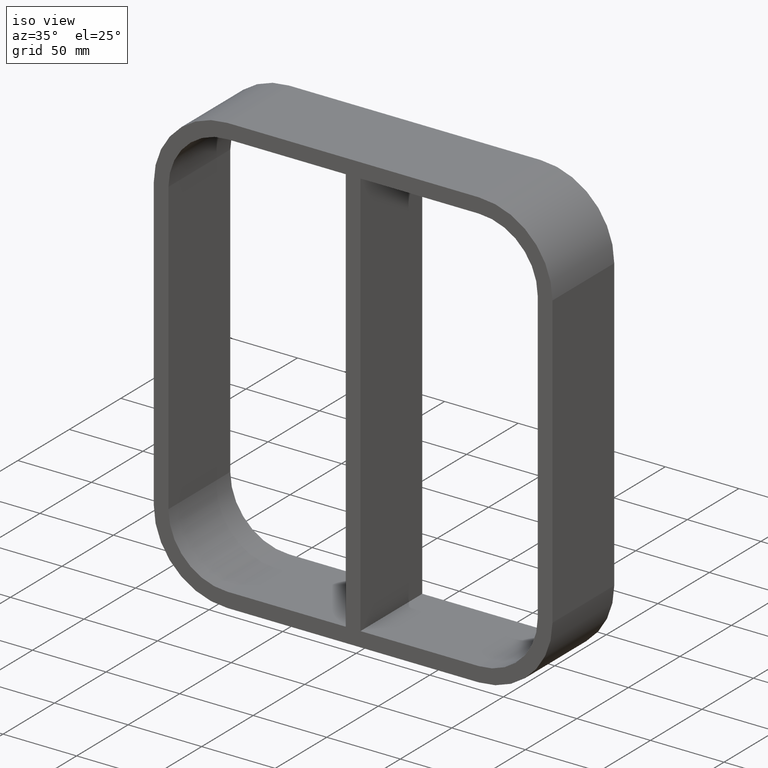
[diagram: clean part render]
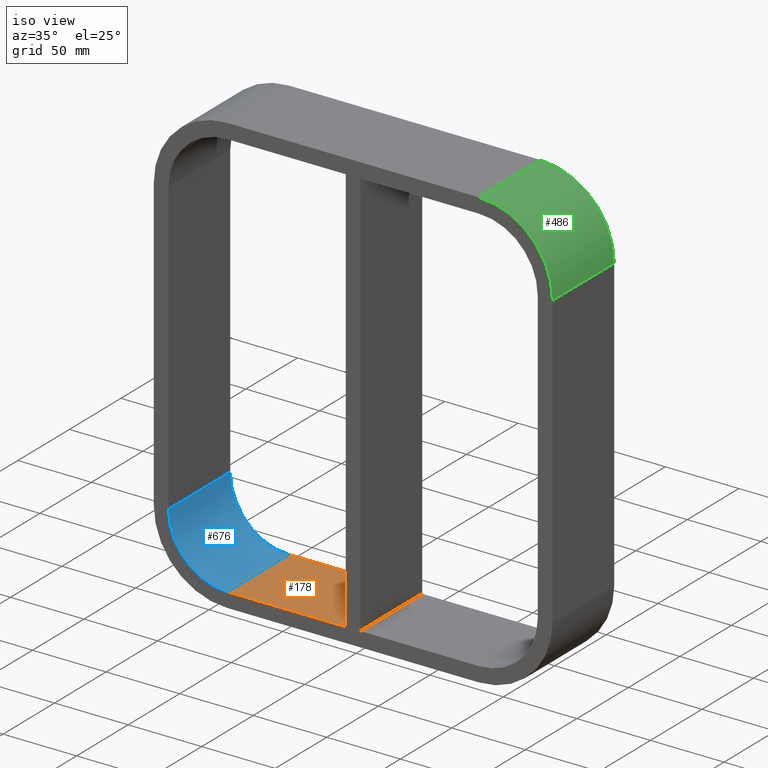
[diagram: same view with three faces highlighted in distinct colors, each labeled with its STEP entity id]
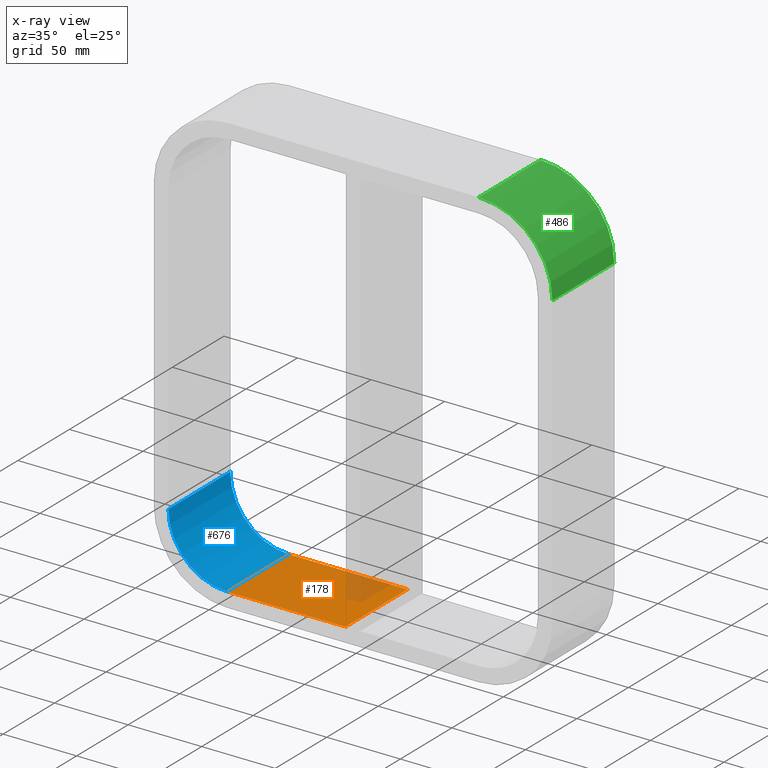
[diagram: x-ray of the same camera — body ghosted, the three highlighted faces saturated]
A machine part, iso view with three faces highlighted in distinct colors.
The next image is the same camera in x-ray (body ghosted, the three faces saturated) — at least one of them is partly hidden behind the body in this view.
Their STEP definitions:

[orange] entity #178 — the highlighted planar face has unit normal (0, 0, -1).
#73=CARTESIAN_POINT('',(-5.000000000001439,-3.0,-139.0));
#74=VERTEX_POINT('',#73);
#91=CARTESIAN_POINT('',(-5.000000000001439,57.0,-139.0));
#92=VERTEX_POINT('',#91);
#99=CARTESIAN_POINT('',(-5.000000000001439,-3.0,-139.0));
#100=DIRECTION('',(0.0,1.0,0.0));
#101=VECTOR('',#100,60.000000000000007);
#102=LINE('',#99,#101);
#103=EDGE_CURVE('',#74,#92,#102,.T.);
#148=CARTESIAN_POINT('',(125.49999999999997,0.0,-139.0));
#149=DIRECTION('',(0.0,0.0,-1.0));
#150=DIRECTION('',(-1.0,0.0,0.0));
#151=AXIS2_PLACEMENT_3D('',#148,#149,#150);
#152=PLANE('',#151);
#153=ORIENTED_EDGE('',*,*,#103,.T.);
#154=CARTESIAN_POINT('',(-85.499999999999972,57.0,-139.0));
#155=VERTEX_POINT('',#154);
#156=CARTESIAN_POINT('',(-85.499999999999943,57.0,-139.0));
#157=DIRECTION('',(1.0,0.0,0.0));
#158=VECTOR('',#157,80.499999999998494);
#159=LINE('',#156,#158);
#160=EDGE_CURVE('',#155,#92,#159,.T.);
#161=ORIENTED_EDGE('',*,*,#160,.F.);
#162=CARTESIAN_POINT('',(-85.499999999999972,-3.0,-139.0));
#163=VERTEX_POINT('',#162);
#164=CARTESIAN_POINT('',(-85.499999999999972,-3.0,-139.0));
#165=DIRECTION('',(0.0,1.0,0.0));
#166=VECTOR('',#165,60.0);
#167=LINE('',#164,#166);
#168=EDGE_CURVE('',#163,#155,#167,.T.);
#169=ORIENTED_EDGE('',*,*,#168,.F.);
#170=CARTESIAN_POINT('',(-5.000000000001442,-3.0,-139.0));
#171=DIRECTION('',(-1.0,0.0,0.0));
#172=VECTOR('',#171,80.499999999998494);
#173=LINE('',#170,#172);
#174=EDGE_CURVE('',#74,#163,#173,.T.);
#175=ORIENTED_EDGE('',*,*,#174,.F.);
#176=EDGE_LOOP('',(#153,#161,#169,#175));
#177=FACE_OUTER_BOUND('',#176,.T.);
#178=ADVANCED_FACE('',(#177),#152,.F.);

[blue] entity #676 — the highlighted cylindrical surface (partial cylindrical patch) has radius 40 mm, axis along (0, 1, 0).
#154=CARTESIAN_POINT('',(-85.499999999999972,57.0,-139.0));
#155=VERTEX_POINT('',#154);
#162=CARTESIAN_POINT('',(-85.499999999999972,-3.0,-139.0));
#163=VERTEX_POINT('',#162);
#164=CARTESIAN_POINT('',(-85.499999999999972,-3.0,-139.0));
#165=DIRECTION('',(0.0,1.0,0.0));
#166=VECTOR('',#165,60.0);
#167=LINE('',#164,#166);
#168=EDGE_CURVE('',#163,#155,#167,.T.);
#380=CARTESIAN_POINT('',(-125.49999999999999,-3.0,-98.999999999999986));
#381=VERTEX_POINT('',#380);
#382=CARTESIAN_POINT('',(-85.499999999999972,-3.0,-98.999999999999986));
#383=DIRECTION('',(0.0,-1.0,0.0));
#384=DIRECTION('',(-0.707106781186547,0.0,-0.707106781186547));
#385=AXIS2_PLACEMENT_3D('',#382,#383,#384);
#386=CIRCLE('',#385,39.999999999999993);
#387=EDGE_CURVE('',#381,#163,#386,.T.);
#617=CARTESIAN_POINT('',(-125.49999999999999,57.0,-98.999999999999986));
#618=VERTEX_POINT('',#617);
#619=CARTESIAN_POINT('',(-125.49999999999999,57.0,-98.999999999999986));
#620=DIRECTION('',(0.0,-1.0,0.0));
#621=VECTOR('',#620,60.0);
#622=LINE('',#619,#621);
#623=EDGE_CURVE('',#618,#381,#622,.T.);
#659=CARTESIAN_POINT('',(-85.499999999999972,0.0,-98.999999999999986));
#660=DIRECTION('',(0.0,1.0,0.0));
#661=DIRECTION('',(-0.707106781186547,0.0,-0.707106781186547));
#662=AXIS2_PLACEMENT_3D('',#659,#660,#661);
#663=CYLINDRICAL_SURFACE('',#662,40.0);
#664=ORIENTED_EDGE('',*,*,#387,.T.);
#665=ORIENTED_EDGE('',*,*,#168,.T.);
#666=CARTESIAN_POINT('',(-85.499999999999972,57.0,-98.999999999999986));
#667=DIRECTION('',(0.0,1.0,0.0));
#668=DIRECTION('',(-0.707106781186547,0.0,-0.707106781186547));
#669=AXIS2_PLACEMENT_3D('',#666,#667,#668);
#670=CIRCLE('',#669,39.999999999999993);
#671=EDGE_CURVE('',#155,#618,#670,.T.);
#672=ORIENTED_EDGE('',*,*,#671,.T.);
#673=ORIENTED_EDGE('',*,*,#623,.T.);
#674=EDGE_LOOP('',(#664,#665,#672,#673));
#675=FACE_OUTER_BOUND('',#674,.T.);
#676=ADVANCED_FACE('',(#675),#663,.F.);

[green] entity #486 — the highlighted cylindrical surface (partial cylindrical patch) has radius 50 mm, axis along (0, -1, 0).
#320=CARTESIAN_POINT('',(135.50000000000003,-3.0,98.999999999999986));
#321=VERTEX_POINT('',#320);
#328=CARTESIAN_POINT('',(85.500000000000028,-3.0,149.0));
#329=VERTEX_POINT('',#328);
#330=CARTESIAN_POINT('',(85.500000000000028,-3.0,98.999999999999986));
#331=DIRECTION('',(0.0,1.0,0.0));
#332=DIRECTION('',(0.707106781186547,0.0,0.707106781186547));
#333=AXIS2_PLACEMENT_3D('',#330,#331,#332);
#334=CIRCLE('',#333,49.999999999999986);
#335=EDGE_CURVE('',#329,#321,#334,.T.);
#444=CARTESIAN_POINT('',(135.50000000000003,57.0,98.999999999999986));
#445=VERTEX_POINT('',#444);
#452=CARTESIAN_POINT('',(135.50000000000003,-3.0,98.999999999999986));
#453=DIRECTION('',(0.0,1.0,0.0));
#454=VECTOR('',#453,60.0);
#455=LINE('',#452,#454);
#456=EDGE_CURVE('',#321,#445,#455,.T.);
#462=CARTESIAN_POINT('',(85.500000000000028,0.0,98.999999999999986));
#463=DIRECTION('',(0.0,-1.0,0.0));
#464=DIRECTION('',(0.707106781186547,0.0,0.707106781186547));
#465=AXIS2_PLACEMENT_3D('',#462,#463,#464);
#466=CYLINDRICAL_SURFACE('',#465,49.999999999999993);
#467=ORIENTED_EDGE('',*,*,#335,.T.);
#468=ORIENTED_EDGE('',*,*,#456,.T.);
#469=CARTESIAN_POINT('',(85.500000000000028,57.0,149.0));
#470=VERTEX_POINT('',#469);
#471=CARTESIAN_POINT('',(85.500000000000028,57.0,98.999999999999986));
#472=DIRECTION('',(0.0,-1.0,0.0));
#473=DIRECTION('',(0.707106781186547,0.0,0.707106781186547));
#474=AXIS2_PLACEMENT_3D('',#471,#472,#473);
#475=CIRCLE('',#474,49.999999999999986);
#476=EDGE_CURVE('',#445,#470,#475,.T.);
#477=ORIENTED_EDGE('',*,*,#476,.T.);
#478=CARTESIAN_POINT('',(85.500000000000028,57.0,149.0));
#479=DIRECTION('',(0.0,-1.0,0.0));
#480=VECTOR('',#479,60.0);
#481=LINE('',#478,#480);
#482=EDGE_CURVE('',#470,#329,#481,.T.);
#483=ORIENTED_EDGE('',*,*,#482,.T.);
#484=EDGE_LOOP('',(#467,#468,#477,#483));
#485=FACE_OUTER_BOUND('',#484,.T.);
#486=ADVANCED_FACE('',(#485),#466,.T.);